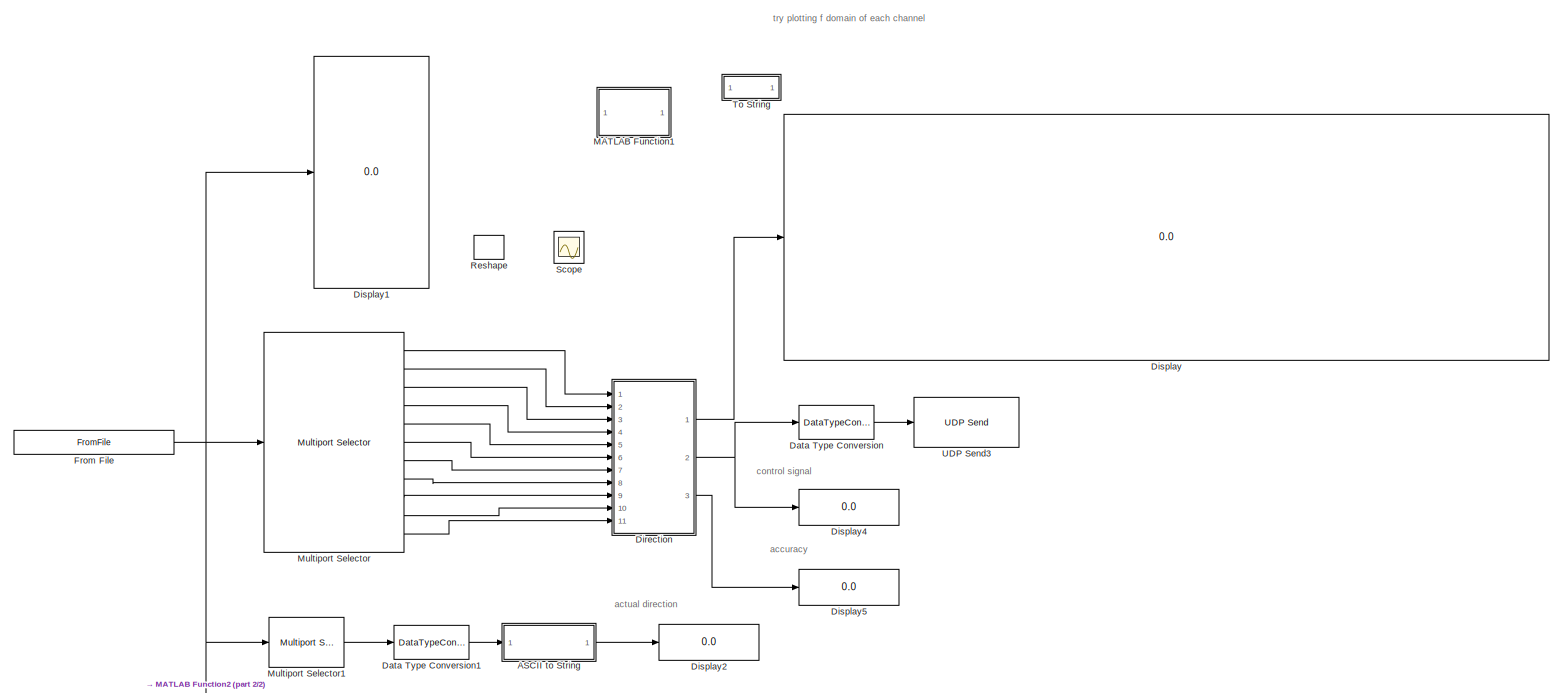
[diagram: root canvas - part 1/2, full width, top band]
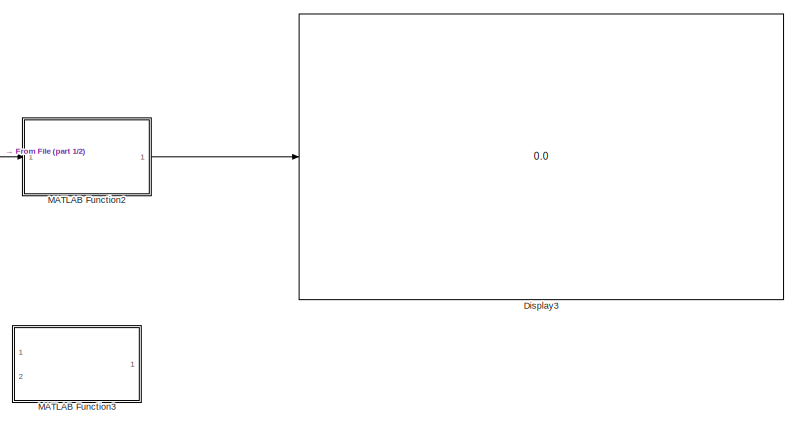
[diagram: root canvas - part 2/2, bottom center region]
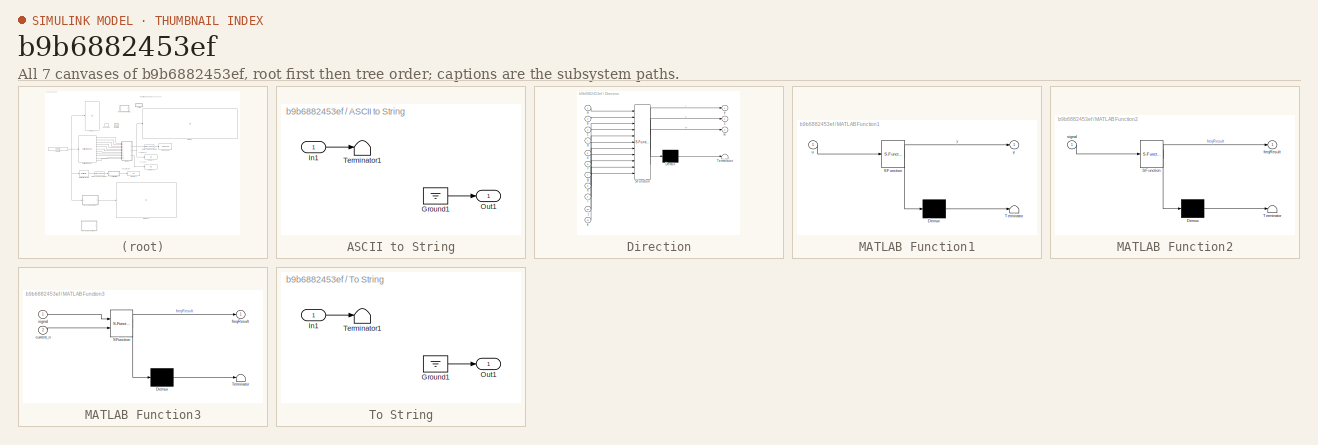
[diagram: thumbnail index - all 7 canvases of the model, root first then tree order]
MODEL slx_b9b6882453ef
KIND model
CONFIG AbsTol = auto
CONFIG EnableMultiTasking = off
CONFIG FixedStep = auto
CONFIG MaxStep = auto
CONFIG MinStep = auto
CONFIG RelTol = 1e-3
CONFIG SampleTimeConstraint = Unconstrained
CONFIG Solver = VariableStepAuto
CONFIG SolverName = VariableStepAuto
CONFIG StartTime = 0.0
CONFIG StopTime = inf
BLOCK [SubSystem] ASCII to String
  Description = Replaced Block
  Ports = [1, 1]
  RequestExecContextInheritance = off
  Variant = off
BLOCK [Ground] ASCII to String/Ground1
BLOCK [Inport] ASCII to String/In1
  IconDisplay = Port number
BLOCK [Outport] ASCII to String/Out1
  IconDisplay = Port number
BLOCK [Terminator] ASCII to String/Terminator1
BLOCK [DataTypeConversion] Data Type Conversion
  ConvertRealWorld = Stored Integer (SI)
  OutDataTypeStr = double
  RndMeth = Floor
  SaturateOnIntegerOverflow = off
BLOCK [DataTypeConversion] Data Type Conversion1
  OutDataTypeStr = uint8
  RndMeth = Floor
  SaturateOnIntegerOverflow = off
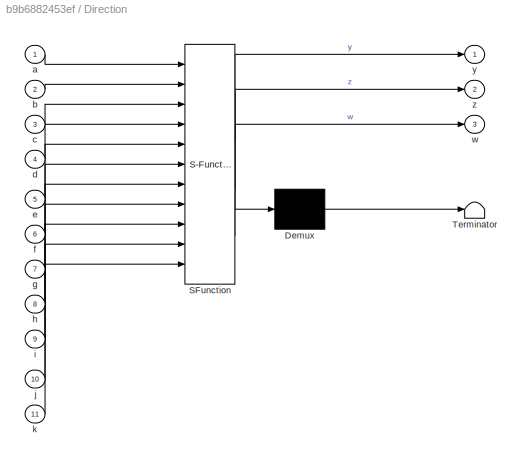
BLOCK [SubSystem] Direction
  ErrorFcn = Stateflow.Translate.translate
  PermitHierarchicalResolution = ExplicitOnly
  Ports = [11, 3]
  RequestExecContextInheritance = off
  SFBlockType = MATLAB Function
  TreatAsAtomicUnit = on
  Variant = off
BLOCK [Demux] Direction/ Demux 
  DisplayOption = bar
  Outputs = 1
  Ports = [1, 1]
BLOCK [S-Function] Direction/ SFunction 
  EnableBusSupport = on
  FunctionName = sf_sfun
  PortCounts = [11 4]
  Ports = [11, 4]
  SFcnIsStateOwnerBlock = off
  SFunctionDeploymentMode = off
  Tag = Stateflow S-Function SSVEPrealtime2017 2
BLOCK [Terminator] Direction/ Terminator 
BLOCK [Inport] Direction/a
  IconDisplay = Port number
BLOCK [Inport] Direction/b
  IconDisplay = Port number
  Port = 2
BLOCK [Inport] Direction/c
  IconDisplay = Port number
  Port = 3
BLOCK [Inport] Direction/d
  IconDisplay = Port number
  Port = 4
BLOCK [Inport] Direction/e
  IconDisplay = Port number
  Port = 5
BLOCK [Inport] Direction/f
  IconDisplay = Port number
  Port = 6
BLOCK [Inport] Direction/g
  IconDisplay = Port number
  Port = 7
BLOCK [Inport] Direction/h
  IconDisplay = Port number
  Port = 8
BLOCK [Inport] Direction/i
  IconDisplay = Port number
  Port = 9
BLOCK [Inport] Direction/j
  IconDisplay = Port number
  Port = 10
BLOCK [Inport] Direction/k
  IconDisplay = Port number
  Port = 11
BLOCK [Outport] Direction/w
  IconDisplay = Port number
  Port = 3
BLOCK [Outport] Direction/y
  IconDisplay = Port number
BLOCK [Outport] Direction/z
  IconDisplay = Port number
  Port = 2
BLOCK [Display] Display
  Decimation = 1
  Ports = [1]
BLOCK [Display] Display1
  Decimation = 1
  Ports = [1]
BLOCK [Display] Display2
  Decimation = 1
  Ports = [1]
BLOCK [Display] Display3
  Commented = on
  Decimation = 1
  Ports = [1]
BLOCK [Display] Display4
  Decimation = 1
  Ports = [1]
BLOCK [Display] Display5
  Decimation = 1
  Ports = [1]
BLOCK [FromFile] From File
  FileName = <path>
  OutDataTypeStr = double
  SampleTime = 1/512
BLOCK [SubSystem] MATLAB Function1
  Commented = on
  ErrorFcn = Stateflow.Translate.translate
  PermitHierarchicalResolution = ExplicitOnly
  Ports = [1, 1]
  RequestExecContextInheritance = off
  SFBlockType = MATLAB Function
  TreatAsAtomicUnit = on
  Variant = off
BLOCK [Demux] MATLAB Function1/ Demux 
  DisplayOption = bar
  Outputs = 1
  Ports = [1, 1]
BLOCK [S-Function] MATLAB Function1/ SFunction 
  EnableBusSupport = on
  FunctionName = sf_sfun
  PortCounts = [1 2]
  Ports = [1, 2]
  SFcnIsStateOwnerBlock = off
  SFunctionDeploymentMode = off
  Tag = Stateflow S-Function SSVEPrealtime2017 3
BLOCK [Terminator] MATLAB Function1/ Terminator 
BLOCK [Inport] MATLAB Function1/u
  IconDisplay = Port number
BLOCK [Outport] MATLAB Function1/y
  IconDisplay = Port number
BLOCK [SubSystem] MATLAB Function2
  Commented = on
  ErrorFcn = Stateflow.Translate.translate
  PermitHierarchicalResolution = ExplicitOnly
  Ports = [1, 1]
  RequestExecContextInheritance = off
  SFBlockType = MATLAB Function
  TreatAsAtomicUnit = on
  Variant = off
BLOCK [Demux] MATLAB Function2/ Demux 
  DisplayOption = bar
  Outputs = 1
  Ports = [1, 1]
BLOCK [S-Function] MATLAB Function2/ SFunction 
  EnableBusSupport = on
  FunctionName = sf_sfun
  PortCounts = [1 2]
  Ports = [1, 2]
  SFcnIsStateOwnerBlock = off
  SFunctionDeploymentMode = off
  Tag = Stateflow S-Function SSVEPrealtime2017 4
BLOCK [Terminator] MATLAB Function2/ Terminator 
BLOCK [Outport] MATLAB Function2/freqResult
  IconDisplay = Port number
BLOCK [Inport] MATLAB Function2/signal
  IconDisplay = Port number
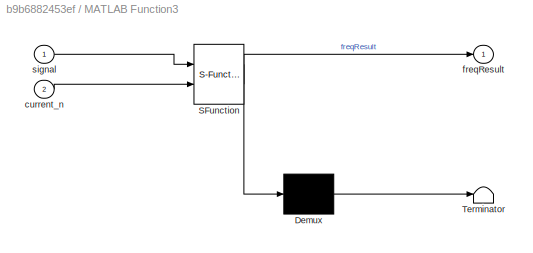
BLOCK [SubSystem] MATLAB Function3
  Commented = on
  ErrorFcn = Stateflow.Translate.translate
  PermitHierarchicalResolution = ExplicitOnly
  Ports = [2, 1]
  RequestExecContextInheritance = off
  SFBlockType = MATLAB Function
  TreatAsAtomicUnit = on
  Variant = off
BLOCK [Demux] MATLAB Function3/ Demux 
  DisplayOption = bar
  Outputs = 1
  Ports = [1, 1]
BLOCK [S-Function] MATLAB Function3/ SFunction 
  EnableBusSupport = on
  FunctionName = sf_sfun
  PortCounts = [2 2]
  Ports = [2, 2]
  SFcnIsStateOwnerBlock = off
  SFunctionDeploymentMode = off
  Tag = Stateflow S-Function SSVEPrealtime2017 5
BLOCK [Terminator] MATLAB Function3/ Terminator 
BLOCK [Inport] MATLAB Function3/current_n
  IconDisplay = Port number
  Port = 2
BLOCK [Outport] MATLAB Function3/freqResult
  IconDisplay = Port number
BLOCK [Inport] MATLAB Function3/signal
  IconDisplay = Port number
BLOCK [Reference] Multiport Selector  REF=dspindex/Multiport
Selector
  Ports = [1, 11]
  SourceBlock = dspindex/Multiport\nSelector
  SourceProductBaseCode = DS
  SourceType = Multiport Selector
BLOCK [Reference] Multiport Selector1  REF=dspindex/Multiport
Selector
  Ports = [1, 1]
  SourceBlock = dspindex/Multiport\nSelector
  SourceProductBaseCode = DS
  SourceType = Multiport Selector
BLOCK [Reshape] Reshape
  Commented = on
  OutputDimensionality = Customize
  OutputDimensions = [10,1]
  Ports = [1, 1]
BLOCK [Scope] Scope
  Commented = on
  NumInputPorts = 1
  Ports = [1]
  ScopeSpecificationString = Simulink.scopes.TimeScopeBlockCfg('CurrentConfiguration', extmgr.ConfigurationSet(extmgr.Configuration('Core','General UI',true),extmgr.Configuration('Core','Source UI',true),extmgr.Configuration('Sources','WiredSimulink',true),extmgr.Configuration('Visuals','Time Domain',true),extmgr.Configuration('Tools','Plot Navigation',true),extmgr.Configuration('Tools','Measurements',true)),'Version','2020a'...<+1ch>
BLOCK [SubSystem] To String
  Commented = on
  Description = Replaced Block
  Ports = [1, 1]
  RequestExecContextInheritance = off
  Variant = off
BLOCK [Ground] To String/Ground1
BLOCK [Inport] To String/In1
  IconDisplay = Port number
BLOCK [Outport] To String/Out1
  IconDisplay = Port number
BLOCK [Terminator] To String/Terminator1
BLOCK [Reference] UDP Send3  REF=dspnetwork/UDP Send
  Ports = [1]
  SourceBlock = dspnetwork/UDP Send
  SourceProductBaseCode = SL
  SourceType = UDP Send
ANNOTATION (root): accuracy
ANNOTATION (root): actual direction
ANNOTATION (root): control signal
ANNOTATION (root): try plotting f domain of each channel
LINE ASCII to String/Ground1:1 -> ASCII to String/Out1:1
LINE ASCII to String/In1:1 -> ASCII to String/Terminator1:1
LINE ASCII to String:1 -> Display2:1
LINE Data Type Conversion1:1 -> ASCII to String:1
LINE Data Type Conversion:1 -> UDP Send3:1
LINE Direction:1 -> Display:1
NET Direction:2 -> Data Type Conversion:1, Display4:1
LINE Direction:3 -> Display5:1
NET From File:1 -> Display1:1, MATLAB Function2:1, Multiport Selector1:1, Multiport Selector:1
LINE MATLAB Function2:1 -> Display3:1
LINE Multiport Selector1:1 -> Data Type Conversion1:1
LINE Multiport Selector:1 -> Direction:1
LINE Multiport Selector:10 -> Direction:10
LINE Multiport Selector:11 -> Direction:11
LINE Multiport Selector:2 -> Direction:2
LINE Multiport Selector:3 -> Direction:3
LINE Multiport Selector:4 -> Direction:4
LINE Multiport Selector:5 -> Direction:5
LINE Multiport Selector:6 -> Direction:6
LINE Multiport Selector:7 -> Direction:7
LINE Multiport Selector:8 -> Direction:8
LINE Multiport Selector:9 -> Direction:9
LINE To String/Ground1:1 -> To String/Out1:1
LINE To String/In1:1 -> To String/Terminator1:1
note: NET lines group one-source signal fan-out (src -> all destinations, sorted); 1:1 wires keep LINE
CHART Direction states=1 transitions=1
  STATE_LABEL 'eML_blk_kernel()'
  STATE_LABEL 'SCRIPT:\nfunction [y,z,w]= fcn(a,b,c,d,e,f,g,h,i,j,k)\n\nu = [a;b;c;d;e;f;g;h;i;j];\nfreq = [11 13.5 16 18.5 21 23.5 25];\n\npersistent v\nif isempty(v)\n    v = 100;\nend\n\npersistent x\nif isempty(x)\n    x = 102;\nend\n\npersistent dir\nif isempty(dir)\n    dir = k;\nend\n\npersistent acc\nif isempty(acc)\n    acc = 0;\nend\n\npersistent keep\nif isempty(keep)\n   keep = 0; \nend\n\npersistent n\nif isempty(n)\n    n = 0;\nend...<+3608ch>'
CHART MATLAB Function1 states=1 transitions=1
  STATE_LABEL 'eML_blk_kernel()'
  STATE_LABEL 'SCRIPT:\nfunction y = fcn(u)\n\nstring var;\n\nif u == 108\n   var = "left";\nend\nif u == 102\n   var = "right";\nend\nif u == 117\n   var = "up";\nend\nif u == 100\n   var = "down";\nend\nif u == 105\n   var = "in";\nend\nif u == 111\n   var = "out";\nend\nif u == 115\n   var = "stop";\nend\nif u == 102\n   var = "off";\nend\n\ny = double(charg(var));'
CHART MATLAB Function2 states=1 transitions=1
  STATE_LABEL 'eML_blk_kernel()'
  STATE_LABEL "SCRIPT:\nfunction freqResult=MEC(signal) %current_n\n\nsignal=signal';\n%% Functions Enabling \nCMA_filter=1;\nFFT_HP_IFFT=1;\nexp_transform=0;\nmid_freqs=1;\nconsider_threshhold=0;\n\n%% Defining Parameteres\n\nf=[11 13.5 16 18.5 21 23.5 25];            %frequencies in concern\nFs = 128;           %Sampling frequency of Emotive\nO1=7;               %| Name and number of channals \nO2=8;\nT7=5;\nT8=10;\nNh=2;       ...<+3252ch>"
CHART MATLAB Function3 states=1 transitions=1
  STATE_LABEL 'eML_blk_kernel()'
  STATE_LABEL "SCRIPT:\nfunction freqResult=MEC(signal,current_n)\n\nsignal=signal';\n%% Functions Enabling \nCMA_filter=1;\nFFT_HP_IFFT=1;\nexp_transform=0;\nmid_freqs=1;\nconsider_threshhold=0;\n\n%% Defining Parameteres\n\nf=[8 10 12 14 16];            %frequencies in concern\nFs = 128;           %Sampling frequency of Emotive\nO1=7;               %| Name and number of channals \nO2=8;\nT7=5;\nT8=10;\nNh=2;               %#of H...<+3238ch>"
note: 1 file-system path scrubbed to <path> (not preserved elsewhere — flat text is the only slx artifact)
